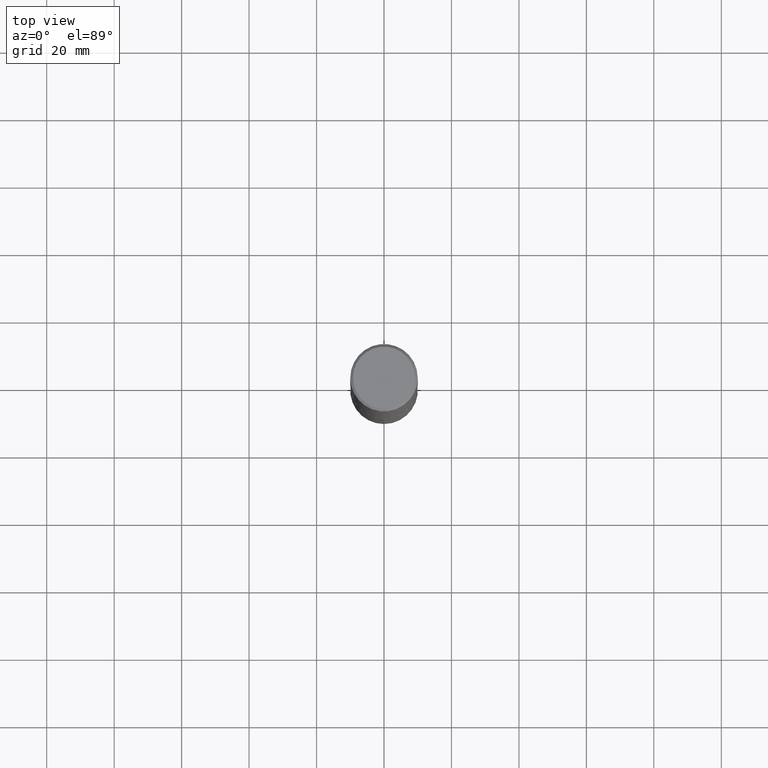
[diagram: clean part render]
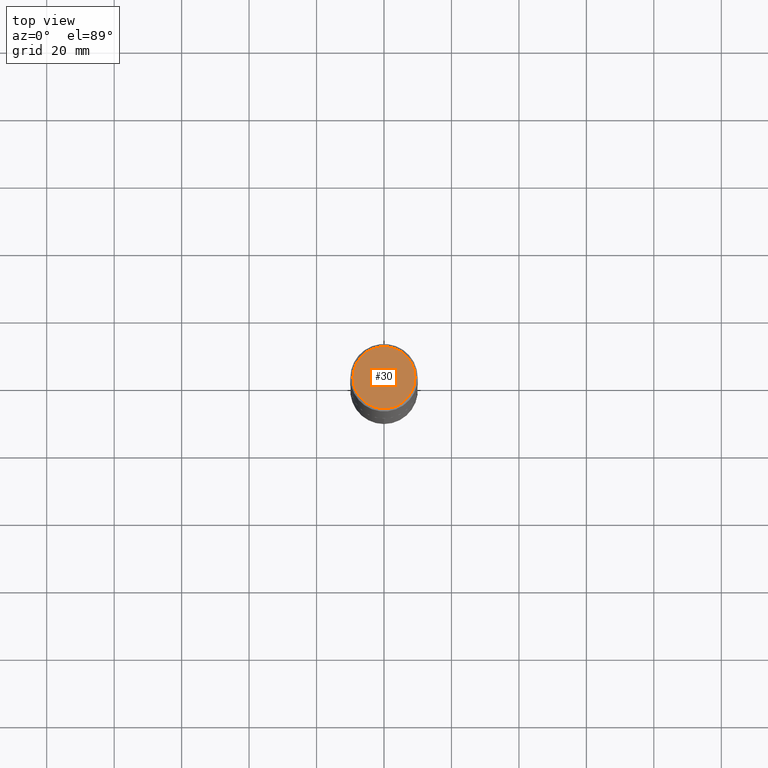
[diagram: same view with one face highlighted and labeled with its STEP entity id]
A machine part, top view. The second image highlights one B-rep face of the part: STEP entity #30.
In plain terms, the highlighted planar face has unit normal (0, -0, -1).
Its self-contained STEP definition (entity closure, byte-faithful):
#14 = DIRECTION ( 'NONE',  ( 1.000000000000000000, -6.982962677686266711E-15, 4.876156645145296500E-29 ) ) ;
#19 = EDGE_CURVE ( 'NONE', #362, #317, #208, .T. ) ;
#25 = ORIENTED_EDGE ( 'NONE', *, *, #19, .T. ) ;
#30 = ADVANCED_FACE ( 'NONE', ( #106 ), #228, .F. ) ;
#64 = CIRCLE ( 'NONE', #120, 0.3624500000000000499 ) ;
#70 = CARTESIAN_POINT ( 'NONE',  ( -1.178467787315321927E-46, 1.682539673960461744E-32, 4.818985154644842843E-18 ) ) ;
#73 = DIRECTION ( 'NONE',  ( -2.445468806185136597E-29, 3.491481338843145583E-15, 1.000000000000000000 ) ) ;
#106 = FACE_OUTER_BOUND ( 'NONE', #216, .T. ) ;
#116 = EDGE_CURVE ( 'NONE', #317, #362, #64, .T. ) ;
#120 = AXIS2_PLACEMENT_3D ( 'NONE', #318, #73, #123 ) ;
#123 = DIRECTION ( 'NONE',  ( 1.000000000000000000, -6.982962677686266711E-15, 4.876156645145296500E-29 ) ) ;
#164 = AXIS2_PLACEMENT_3D ( 'NONE', #70, #303, #14 ) ;
#181 = CARTESIAN_POINT ( 'NONE',  ( -0.3624500000000000499, 2.585529218446811143E-15, 4.818985154626951724E-18 ) ) ;
#187 = ORIENTED_EDGE ( 'NONE', *, *, #116, .T. ) ;
#208 = CIRCLE ( 'NONE', #164, 0.3624500000000000499 ) ;
#216 = EDGE_LOOP ( 'NONE', ( #25, #187 ) ) ;
#228 = PLANE ( 'NONE',  #345 ) ;
#294 = CARTESIAN_POINT ( 'NONE',  ( 0.3624500000000000499, -2.648337176426896805E-15, 4.818985154662952747E-18 ) ) ;
#303 = DIRECTION ( 'NONE',  ( -2.445468806185136597E-29, 3.491481338843145583E-15, 1.000000000000000000 ) ) ;
#309 = DIRECTION ( 'NONE',  ( -1.000000000000000000, 6.982962677686265922E-15, -4.876176775795935793E-29 ) ) ;
#317 = VERTEX_POINT ( 'NONE', #294 ) ;
#318 = CARTESIAN_POINT ( 'NONE',  ( -1.178467787315321927E-46, 1.682539673960461744E-32, 4.818985154644842843E-18 ) ) ;
#336 = DIRECTION ( 'NONE',  ( 2.438088387897960049E-29, -3.491481338843145188E-15, -1.000000000000000000 ) ) ;
#345 = AXIS2_PLACEMENT_3D ( 'NONE', #348, #336, #309 ) ;
#348 = CARTESIAN_POINT ( 'NONE',  ( -5.892338936576609633E-47, 8.412698369802308719E-33, 2.409492577322421421E-18 ) ) ;
#362 = VERTEX_POINT ( 'NONE', #181 ) ;